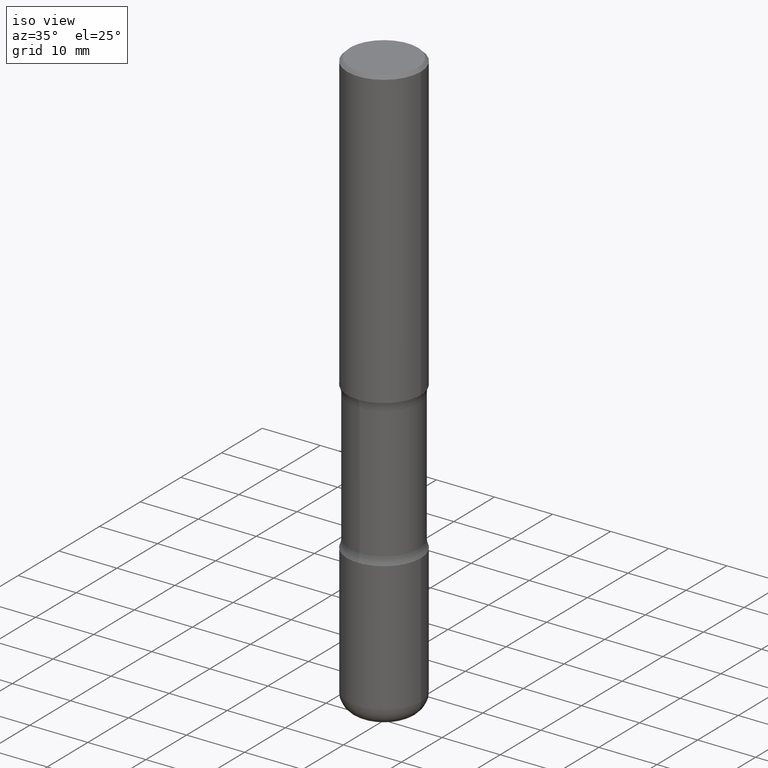
[diagram: clean part render]
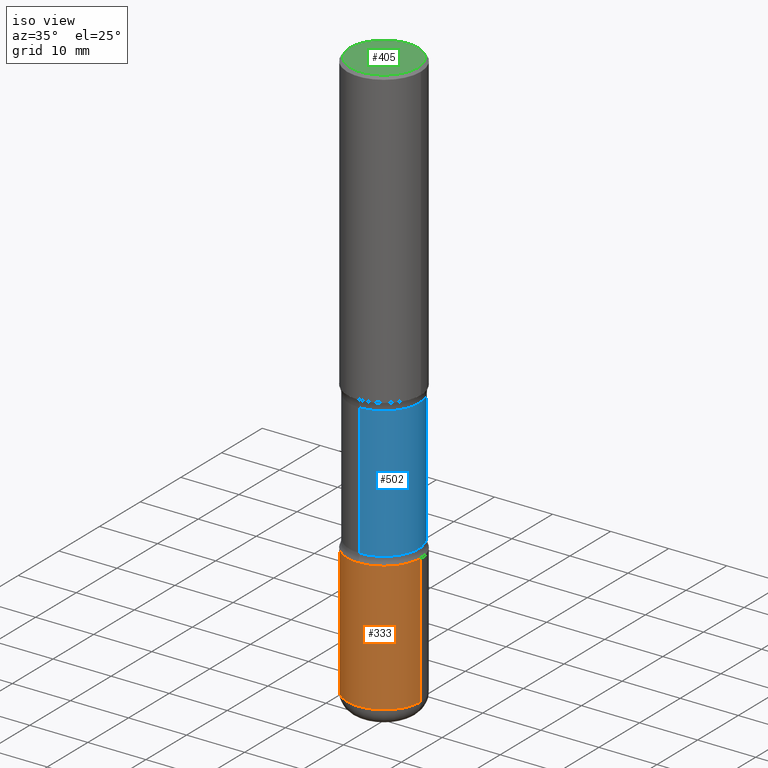
[diagram: same view with three faces highlighted in distinct colors, each labeled with its STEP entity id]
A machine part, iso view with three faces highlighted in distinct colors.
Their STEP definitions:

[orange] entity #333 — the highlighted cylindrical surface (partial cylindrical patch) has radius 6.35 mm, axis along (-0, 0, 1).
#4 = EDGE_CURVE ( 'NONE', #52, #246, #182, .T. ) ;
#5 = DIRECTION ( 'NONE',  ( 1.000000000000000000, -6.982962677686267499E-15, 0.000000000000000000 ) ) ;
#15 = EDGE_CURVE ( 'NONE', #246, #72, #141, .T. ) ;
#20 = DIRECTION ( 'NONE',  ( -2.445468806185136597E-29, 3.491481338843145583E-15, 1.000000000000000000 ) ) ;
#27 = CARTESIAN_POINT ( 'NONE',  ( -0.2500000000000003331, 1.776356839400252831E-15, -1.229733772563727987E-29 ) ) ;
#29 = CARTESIAN_POINT ( 'NONE',  ( 0.2500000000000002776, -1.222018468595100619E-14, -3.000000000000000444 ) ) ;
#44 = FACE_OUTER_BOUND ( 'NONE', #252, .T. ) ;
#52 = VERTEX_POINT ( 'NONE', #443 ) ;
#72 = VERTEX_POINT ( 'NONE', #29 ) ;
#95 = AXIS2_PLACEMENT_3D ( 'NONE', #303, #560, #210 ) ;
#96 = DIRECTION ( 'NONE',  ( -2.445468806185136877E-29, 3.491481338843145188E-15, 1.000000000000000000 ) ) ;
#141 = CIRCLE ( 'NONE', #317, 0.2500000000000002776 ) ;
#144 = DIRECTION ( 'NONE',  ( -2.445468806185136877E-29, 3.491481338843145188E-15, 1.000000000000000000 ) ) ;
#145 = ORIENTED_EDGE ( 'NONE', *, *, #263, .T. ) ;
#177 = LINE ( 'NONE', #324, #524 ) ;
#182 = LINE ( 'NONE', #27, #230 ) ;
#210 = DIRECTION ( 'NONE',  ( 1.000000000000000000, -6.982962677686266711E-15, 4.876176775795935793E-29 ) ) ;
#230 = VECTOR ( 'NONE', #144, 39.37007874015748143 ) ;
#234 = ORIENTED_EDGE ( 'NONE', *, *, #4, .F. ) ;
#246 = VERTEX_POINT ( 'NONE', #541 ) ;
#252 = EDGE_LOOP ( 'NONE', ( #234, #280, #145, #447 ) ) ;
#263 = EDGE_CURVE ( 'NONE', #426, #72, #177, .T. ) ;
#280 = ORIENTED_EDGE ( 'NONE', *, *, #382, .T. ) ;
#303 = CARTESIAN_POINT ( 'NONE',  ( 0.000000000000000000, 0.000000000000000000, 0.000000000000000000 ) ) ;
#308 = CARTESIAN_POINT ( 'NONE',  ( 9.488418967998331206E-29, -1.354694759471140727E-14, -3.880000000000000782 ) ) ;
#316 = DIRECTION ( 'NONE',  ( 1.000000000000000000, -6.982962677686270655E-15, 0.000000000000000000 ) ) ;
#317 = AXIS2_PLACEMENT_3D ( 'NONE', #323, #20, #316 ) ;
#323 = CARTESIAN_POINT ( 'NONE',  ( 7.336406418555409790E-29, -1.047444401652943635E-14, -3.000000000000000444 ) ) ;
#324 = CARTESIAN_POINT ( 'NONE',  ( 0.2500000000000003331, -1.745740669421569044E-15, 1.219044193948985630E-29 ) ) ;
#333 = ADVANCED_FACE ( 'NONE', ( #44 ), #514, .T. ) ;
#382 = EDGE_CURVE ( 'NONE', #52, #426, #392, .T. ) ;
#392 = CIRCLE ( 'NONE', #463, 0.2500000000000003886 ) ;
#426 = VERTEX_POINT ( 'NONE', #456 ) ;
#439 = DIRECTION ( 'NONE',  ( -2.445468806185136597E-29, 3.491481338843145583E-15, 1.000000000000000000 ) ) ;
#443 = CARTESIAN_POINT ( 'NONE',  ( -0.2500000000000003331, -1.177059075531115523E-14, -3.880000000000000782 ) ) ;
#447 = ORIENTED_EDGE ( 'NONE', *, *, #15, .F. ) ;
#456 = CARTESIAN_POINT ( 'NONE',  ( 0.2500000000000003331, -1.529268826413297711E-14, -3.880000000000000782 ) ) ;
#463 = AXIS2_PLACEMENT_3D ( 'NONE', #308, #439, #5 ) ;
#514 = CYLINDRICAL_SURFACE ( 'NONE', #95, 0.2500000000000003331 ) ;
#524 = VECTOR ( 'NONE', #96, 39.37007874015748143 ) ;
#541 = CARTESIAN_POINT ( 'NONE',  ( -0.2500000000000002776, -1.023433896622016898E-14, -3.000000000000000444 ) ) ;
#560 = DIRECTION ( 'NONE',  ( -2.445468806185136597E-29, 3.491481338843145583E-15, 1.000000000000000000 ) ) ;

[blue] entity #502 — the highlighted cylindrical surface (partial cylindrical patch) has radius 6.0325 mm, axis along (0, -0, -1).
#22 = DIRECTION ( 'NONE',  ( 2.530378452311521502E-29, -3.369885892833230592E-15, -1.000000000000000000 ) ) ;
#38 = AXIS2_PLACEMENT_3D ( 'NONE', #167, #78, #357 ) ;
#48 = AXIS2_PLACEMENT_3D ( 'NONE', #260, #262, #272 ) ;
#75 = EDGE_LOOP ( 'NONE', ( #417, #123, #227, #553 ) ) ;
#78 = DIRECTION ( 'NONE',  ( 2.530378452311521502E-29, -3.369885892833230986E-15, -1.000000000000000000 ) ) ;
#85 = VECTOR ( 'NONE', #93, 39.37007874015748143 ) ;
#93 = DIRECTION ( 'NONE',  ( 2.530378452311521502E-29, -3.369885892833230592E-15, -1.000000000000000000 ) ) ;
#121 = FACE_OUTER_BOUND ( 'NONE', #75, .T. ) ;
#123 = ORIENTED_EDGE ( 'NONE', *, *, #354, .T. ) ;
#130 = CARTESIAN_POINT ( 'NONE',  ( 1.658453635950538436E-15, 0.2374999999999928557, -2.054486236794259568 ) ) ;
#161 = EDGE_CURVE ( 'NONE', #286, #204, #404, .T. ) ;
#167 = CARTESIAN_POINT ( 'NONE',  ( 7.198535619023675570E-29, -1.029083161580289368E-14, -2.945513763205741320 ) ) ;
#188 = CYLINDRICAL_SURFACE ( 'NONE', #411, 0.2375000000000000999 ) ;
#204 = VERTEX_POINT ( 'NONE', #529 ) ;
#227 = ORIENTED_EDGE ( 'NONE', *, *, #290, .F. ) ;
#260 = CARTESIAN_POINT ( 'NONE',  ( 4.943898765775623630E-29, -7.288170524422749615E-15, -2.054486236794258680 ) ) ;
#262 = DIRECTION ( 'NONE',  ( 2.530378452311521502E-29, -3.369885892833230986E-15, -1.000000000000000000 ) ) ;
#272 = DIRECTION ( 'NONE',  ( 6.982962677686265133E-15, 1.000000000000000000, -3.450755360418014766E-15 ) ) ;
#281 = VERTEX_POINT ( 'NONE', #364 ) ;
#286 = VERTEX_POINT ( 'NONE', #130 ) ;
#290 = EDGE_CURVE ( 'NONE', #204, #281, #301, .T. ) ;
#294 = CIRCLE ( 'NONE', #48, 0.2375000000000001277 ) ;
#301 = CIRCLE ( 'NONE', #38, 0.2375000000000000722 ) ;
#309 = VECTOR ( 'NONE', #22, 39.37007874015748143 ) ;
#354 = EDGE_CURVE ( 'NONE', #415, #281, #393, .T. ) ;
#357 = DIRECTION ( 'NONE',  ( 6.982962677686265133E-15, 1.000000000000000000, -2.300503573612010239E-15 ) ) ;
#362 = DIRECTION ( 'NONE',  ( 2.530378452311521502E-29, -3.369885892833230986E-15, -1.000000000000000000 ) ) ;
#364 = CARTESIAN_POINT ( 'NONE',  ( -1.672246386956739071E-15, -0.2375000000000103417, -2.945513763205740876 ) ) ;
#371 = CARTESIAN_POINT ( 'NONE',  ( 1.658453635950587543E-15, 0.2374999999999862776, -4.000000000000000888 ) ) ;
#393 = LINE ( 'NONE', #521, #85 ) ;
#404 = LINE ( 'NONE', #371, #309 ) ;
#411 = AXIS2_PLACEMENT_3D ( 'NONE', #557, #362, #538 ) ;
#415 = VERTEX_POINT ( 'NONE', #423 ) ;
#417 = ORIENTED_EDGE ( 'NONE', *, *, #482, .T. ) ;
#423 = CARTESIAN_POINT ( 'NONE',  ( -1.672246386956763723E-15, -0.2375000000000074274, -2.054486236794258236 ) ) ;
#482 = EDGE_CURVE ( 'NONE', #286, #415, #294, .T. ) ;
#502 = ADVANCED_FACE ( 'NONE', ( #121 ), #188, .T. ) ;
#521 = CARTESIAN_POINT ( 'NONE',  ( -1.629368274470640415E-15, -0.2375000000000139222, -3.999999999999999556 ) ) ;
#529 = CARTESIAN_POINT ( 'NONE',  ( 1.658453635950560525E-15, 0.2374999999999897748, -2.945513763205741764 ) ) ;
#538 = DIRECTION ( 'NONE',  ( 6.982962677686265133E-15, 1.000000000000000000, -2.300503573612010239E-15 ) ) ;
#553 = ORIENTED_EDGE ( 'NONE', *, *, #161, .F. ) ;
#557 = CARTESIAN_POINT ( 'NONE',  ( 9.866784870866931853E-29, -1.384432990936266734E-14, -4.000000000000000000 ) ) ;

[green] entity #405 — the highlighted planar face has unit normal (0, -0, -1).
#2 = DIRECTION ( 'NONE',  ( 1.000000000000000000, -6.982962677686267499E-15, 4.876176775795936353E-29 ) ) ;
#60 = FACE_OUTER_BOUND ( 'NONE', #158, .T. ) ;
#86 = EDGE_CURVE ( 'NONE', #353, #451, #381, .T. ) ;
#124 = AXIS2_PLACEMENT_3D ( 'NONE', #180, #285, #279 ) ;
#136 = CARTESIAN_POINT ( 'NONE',  ( 0.000000000000000000, 0.000000000000000000, 0.000000000000000000 ) ) ;
#143 = PLANE ( 'NONE',  #124 ) ;
#158 = EDGE_LOOP ( 'NONE', ( #425, #240 ) ) ;
#160 = DIRECTION ( 'NONE',  ( -2.445468806185136597E-29, 3.491481338843145583E-15, 1.000000000000000000 ) ) ;
#180 = CARTESIAN_POINT ( 'NONE',  ( 1.606081415867840476E-15, 0.2299999999999998990, -8.030407079339231961E-16 ) ) ;
#184 = AXIS2_PLACEMENT_3D ( 'NONE', #136, #253, #2 ) ;
#240 = ORIENTED_EDGE ( 'NONE', *, *, #428, .T. ) ;
#253 = DIRECTION ( 'NONE',  ( -2.445468806185136597E-29, 3.491481338843145583E-15, 1.000000000000000000 ) ) ;
#279 = DIRECTION ( 'NONE',  ( -1.000000000000000000, 6.982962677686265922E-15, -4.876176775795935793E-29 ) ) ;
#284 = AXIS2_PLACEMENT_3D ( 'NONE', #379, #160, #543 ) ;
#285 = DIRECTION ( 'NONE',  ( 2.438088387897960049E-29, -3.491481338843145188E-15, -1.000000000000000000 ) ) ;
#306 = CARTESIAN_POINT ( 'NONE',  ( -0.2299999999999998990, 1.640996229256271928E-15, -1.135408596578605420E-29 ) ) ;
#337 = CARTESIAN_POINT ( 'NONE',  ( 0.2299999999999998990, -1.681434332853598617E-15, 1.149527484987432660E-29 ) ) ;
#353 = VERTEX_POINT ( 'NONE', #306 ) ;
#379 = CARTESIAN_POINT ( 'NONE',  ( 0.000000000000000000, 0.000000000000000000, 0.000000000000000000 ) ) ;
#381 = CIRCLE ( 'NONE', #184, 0.2299999999999998990 ) ;
#405 = ADVANCED_FACE ( 'NONE', ( #60 ), #143, .F. ) ;
#425 = ORIENTED_EDGE ( 'NONE', *, *, #86, .T. ) ;
#428 = EDGE_CURVE ( 'NONE', #451, #353, #534, .T. ) ;
#451 = VERTEX_POINT ( 'NONE', #337 ) ;
#534 = CIRCLE ( 'NONE', #284, 0.2299999999999998990 ) ;
#543 = DIRECTION ( 'NONE',  ( 1.000000000000000000, -6.982962677686267499E-15, 4.876176775795936353E-29 ) ) ;